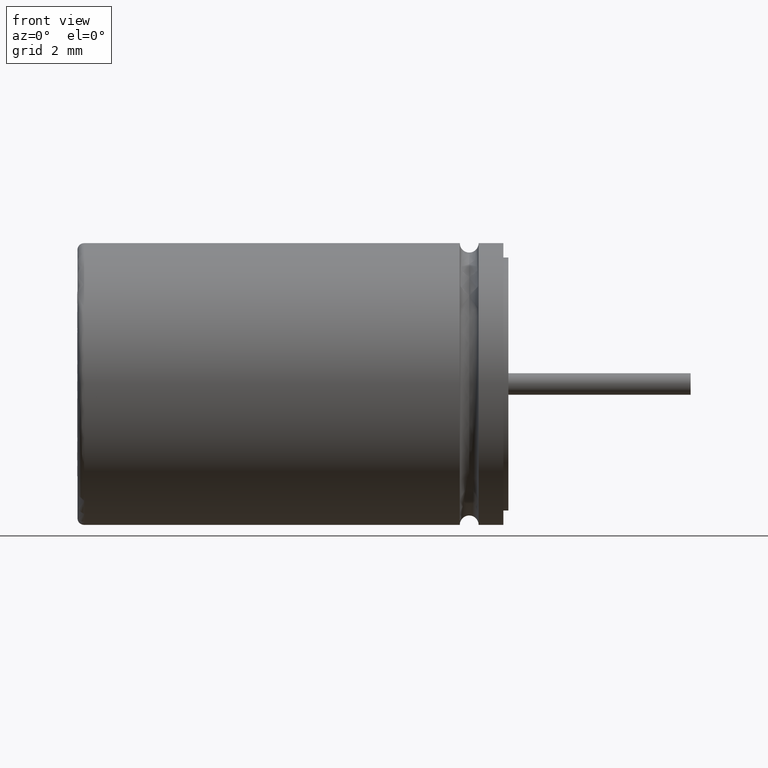
[diagram: clean part render]
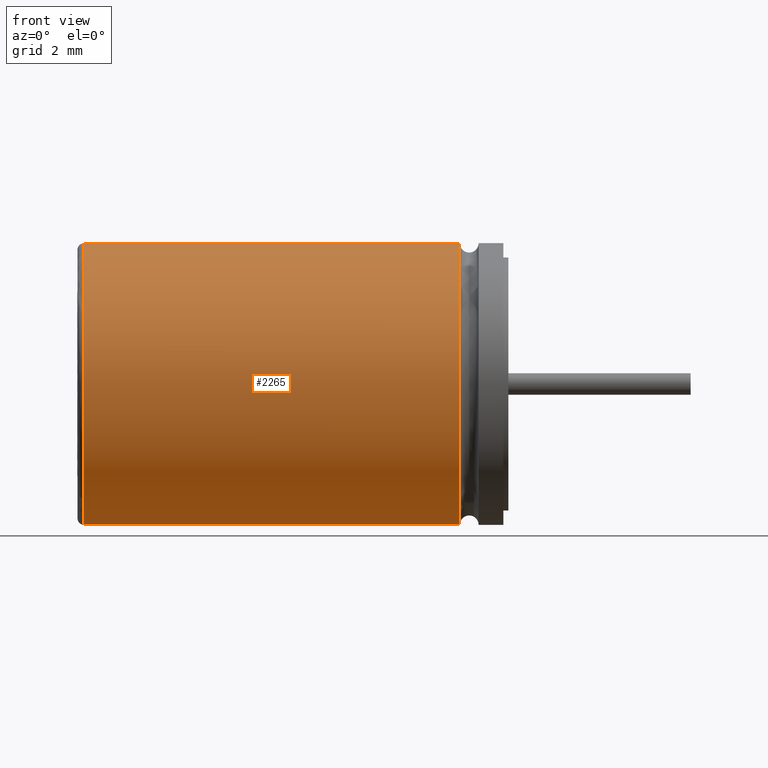
[diagram: same view with one face highlighted and labeled with its STEP entity id]
A machine part, front view. The second image highlights one B-rep face of the part: STEP entity #2265.
In plain terms, the highlighted cylindrical surface (partial cylindrical patch) has radius 4.25 mm, axis along (-1, -0, -0).
Its self-contained STEP definition (entity closure, byte-faithful):
#26 = ORIENTED_EDGE ( 'NONE', *, *, #2881, .F. ) ;
#46 = CIRCLE ( 'NONE', #2822, 4.250000000000000000 ) ;
#151 = CIRCLE ( 'NONE', #3303, 4.250000000000000000 ) ;
#243 = CARTESIAN_POINT ( 'NONE',  ( 11.53375000000000300, 0.0000000000000000000, -4.250000000000000000 ) ) ;
#259 = EDGE_LOOP ( 'NONE', ( #2206, #26, #1690, #2706 ) ) ;
#376 = EDGE_CURVE ( 'NONE', #556, #3359, #422, .T. ) ;
#422 = LINE ( 'NONE', #1012, #456 ) ;
#451 = FACE_OUTER_BOUND ( 'NONE', #259, .T. ) ;
#456 = VECTOR ( 'NONE', #3121, 1000.000000000000000 ) ;
#556 = VERTEX_POINT ( 'NONE', #243 ) ;
#613 = CYLINDRICAL_SURFACE ( 'NONE', #2996, 4.250000000000000000 ) ;
#1012 = CARTESIAN_POINT ( 'NONE',  ( 12.85000000000000000, 5.204748896376249700E-016, -4.250000000000000000 ) ) ;
#1088 = CARTESIAN_POINT ( 'NONE',  ( 11.53375000000000300, 5.204748896376250700E-016, 4.250000000000000000 ) ) ;
#1312 = CARTESIAN_POINT ( 'NONE',  ( 12.85000000000000000, 0.0000000000000000000, 4.250000000000000000 ) ) ;
#1444 = CARTESIAN_POINT ( 'NONE',  ( 11.53375000000000300, 0.0000000000000000000, 0.0000000000000000000 ) ) ;
#1455 = EDGE_CURVE ( 'NONE', #2118, #3359, #46, .T. ) ;
#1551 = CARTESIAN_POINT ( 'NONE',  ( 0.2000000000000005100, 0.0000000000000000000, 0.0000000000000000000 ) ) ;
#1690 = ORIENTED_EDGE ( 'NONE', *, *, #2699, .T. ) ;
#1802 = DIRECTION ( 'NONE',  ( 0.0000000000000000000, 0.0000000000000000000, -1.000000000000000000 ) ) ;
#1915 = CARTESIAN_POINT ( 'NONE',  ( 12.85000000000000000, 0.0000000000000000000, 0.0000000000000000000 ) ) ;
#1958 = DIRECTION ( 'NONE',  ( 1.000000000000000000, -0.0000000000000000000, -0.0000000000000000000 ) ) ;
#2105 = DIRECTION ( 'NONE',  ( 1.000000000000000000, 0.0000000000000000000, 0.0000000000000000000 ) ) ;
#2118 = VERTEX_POINT ( 'NONE', #2573 ) ;
#2186 = DIRECTION ( 'NONE',  ( 0.0000000000000000000, 0.0000000000000000000, 1.000000000000000000 ) ) ;
#2206 = ORIENTED_EDGE ( 'NONE', *, *, #376, .F. ) ;
#2265 = ADVANCED_FACE ( 'NONE', ( #451 ), #613, .T. ) ;
#2573 = CARTESIAN_POINT ( 'NONE',  ( 0.2000000000000005100, 0.0000000000000000000, 4.250000000000000000 ) ) ;
#2699 = EDGE_CURVE ( 'NONE', #2783, #2118, #3448, .T. ) ;
#2706 = ORIENTED_EDGE ( 'NONE', *, *, #1455, .T. ) ;
#2783 = VERTEX_POINT ( 'NONE', #1088 ) ;
#2806 = DIRECTION ( 'NONE',  ( 0.0000000000000000000, 0.0000000000000000000, -1.000000000000000000 ) ) ;
#2822 = AXIS2_PLACEMENT_3D ( 'NONE', #1551, #2105, #1802 ) ;
#2881 = EDGE_CURVE ( 'NONE', #2783, #556, #151, .T. ) ;
#2968 = DIRECTION ( 'NONE',  ( -1.000000000000000000, -0.0000000000000000000, -0.0000000000000000000 ) ) ;
#2975 = DIRECTION ( 'NONE',  ( -1.000000000000000000, -0.0000000000000000000, -0.0000000000000000000 ) ) ;
#2996 = AXIS2_PLACEMENT_3D ( 'NONE', #1915, #2968, #2186 ) ;
#3121 = DIRECTION ( 'NONE',  ( -1.000000000000000000, -0.0000000000000000000, -0.0000000000000000000 ) ) ;
#3303 = AXIS2_PLACEMENT_3D ( 'NONE', #1444, #1958, #2806 ) ;
#3359 = VERTEX_POINT ( 'NONE', #3452 ) ;
#3448 = LINE ( 'NONE', #1312, #3489 ) ;
#3452 = CARTESIAN_POINT ( 'NONE',  ( 0.2000000000000005100, 5.204748896376249700E-016, -4.250000000000000000 ) ) ;
#3489 = VECTOR ( 'NONE', #2975, 1000.000000000000000 ) ;